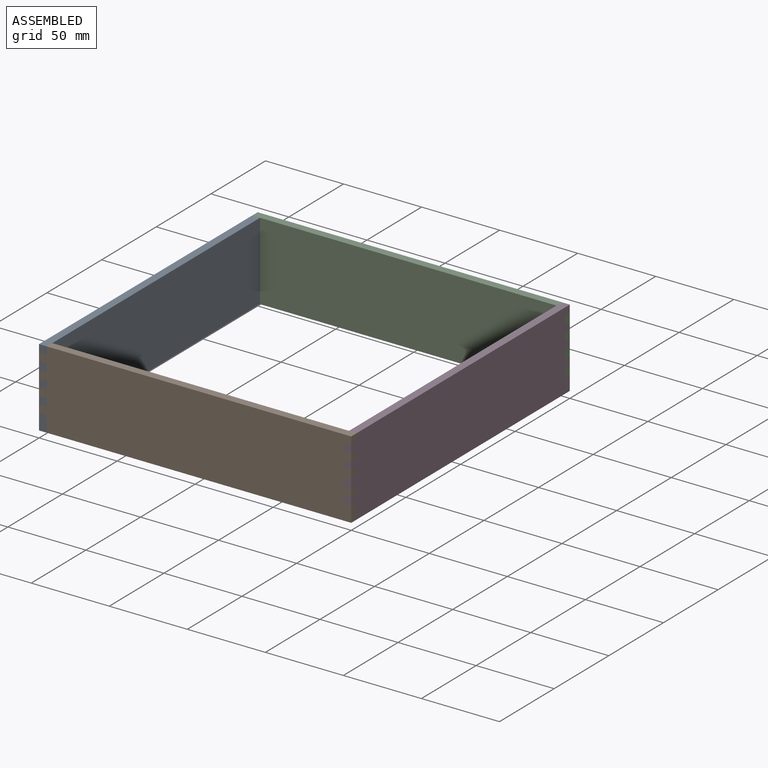
[diagram: assembled view]
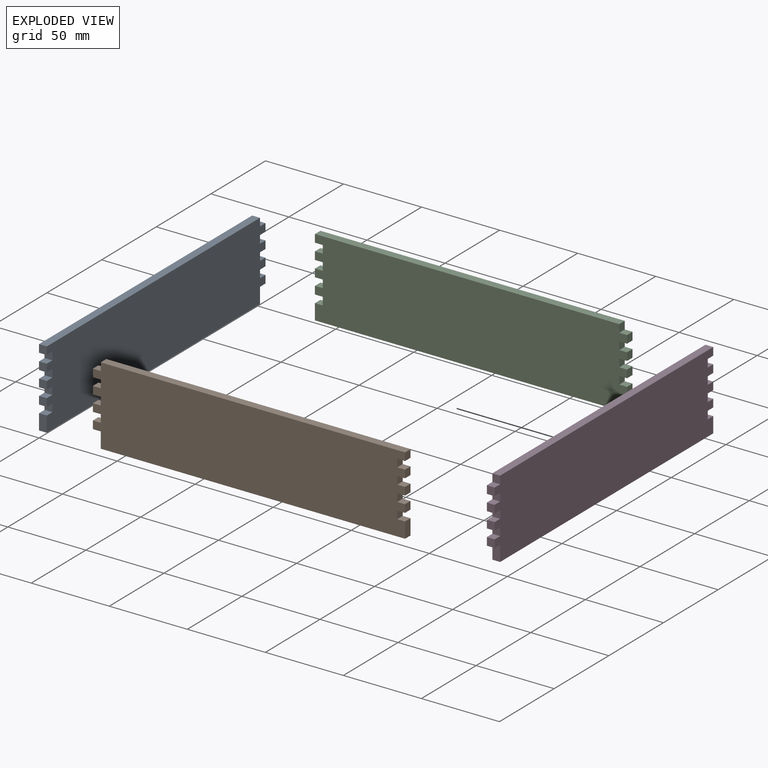
[diagram: exploded view]
GUIDED TOUR — MATED ASSEMBLY (Onshape document 14ee7dbbffca1f1e10165920, AutoMate assembly 14ee7dbbffca1f1e10165920_e3d922f79902fccb006b5758_66fbcc3a482cc04d142b8439_default)

This assembly has 4 components, labeled P0..P3 below (a component is one placed occurrence of a part; the same part can appear more than once), held together by 3 mates. A mate is a constraint between two components; its type names the relative motion it leaves free:
  FASTENED — locks the two components together rigidly (no relative motion).
Axis/direction vectors are unit vectors and 'through' points are millimeter coordinates, both in the assembly's world frame.

MATES
  1. FASTENED "Fastened 1": P0 <-> P1, direction (1.000, 0.000, 0.000) through (-95.00, 0.00, 20.02) mm
  2. FASTENED "Fastened 2": P2 <-> P0, direction (0.000, -1.000, 0.000) through (-100.00, 195.00, 25.02) mm
  3. FASTENED "Fastened 3": P3 <-> P1, direction (1.000, 0.000, 0.000) through (100.00, 5.00, 20.02) mm

ASSEMBLY ORDER
  1. P0 — the base component [order verified]
  2. P2 [order verified]
  3. P3 [order verified]
  4. P1 [order verified]
Order-tag legend:
  [order verified] — this step's position reverses a verified removal order: the component was checked to insert without passing through the ones already placed.

Of the 4 components, 4 carry the full construction recipe — the FeatureScript program that regenerates the part's solid from scratch; the rest are supplied as boundary geometry only.
Each toured component is shown spotlighted twice — in the assembled view, then in the exploded view, where a leader line traces a displaced component back to its assembled socket (saturated green if recipe-attached, orange if geometry-only; every other component desaturated gray) — followed by its recipe or geometry summary and the mates that hold it.
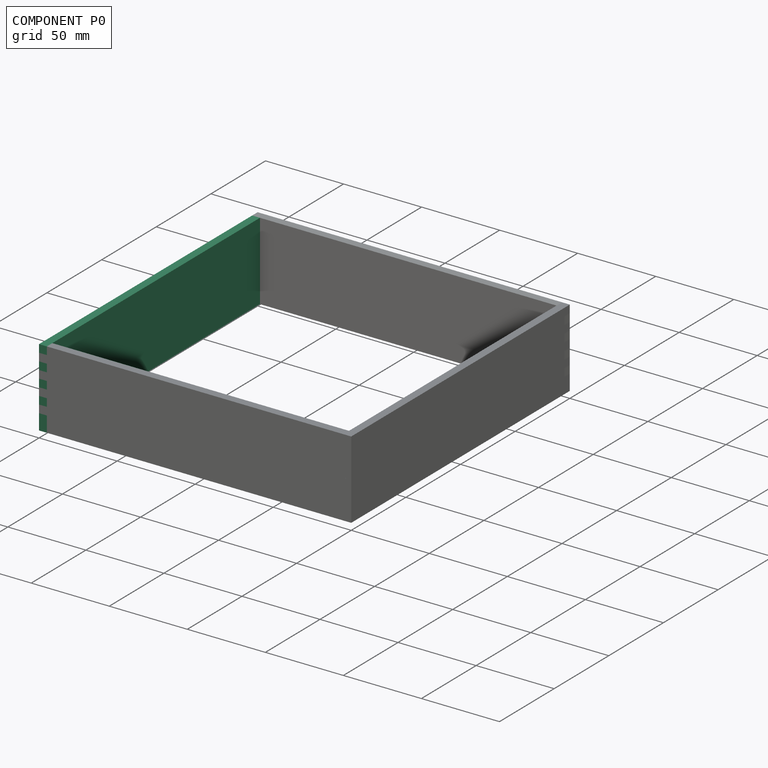
[diagram: component P0 — assembled]
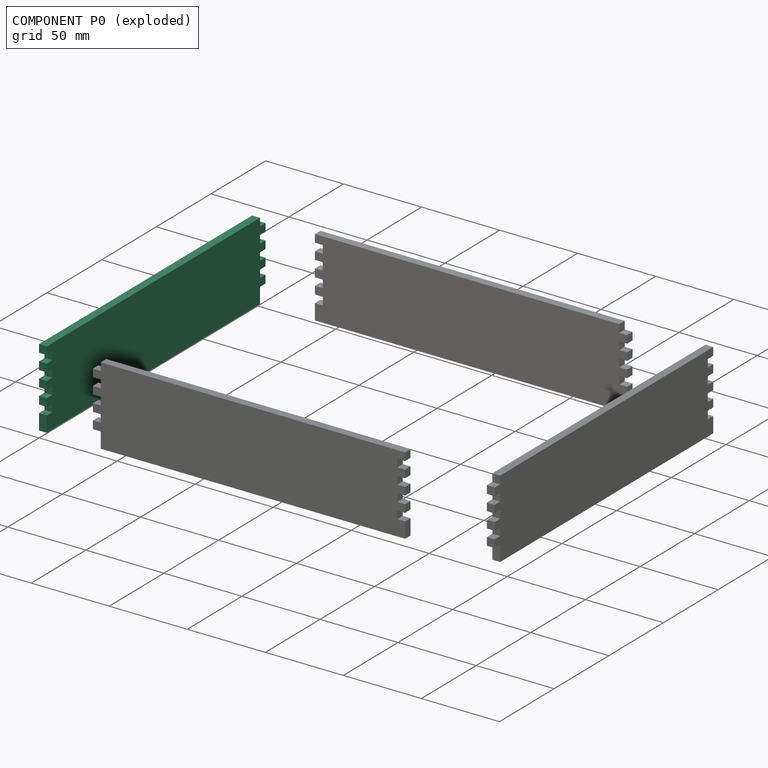
[diagram: component P0 — exploded]
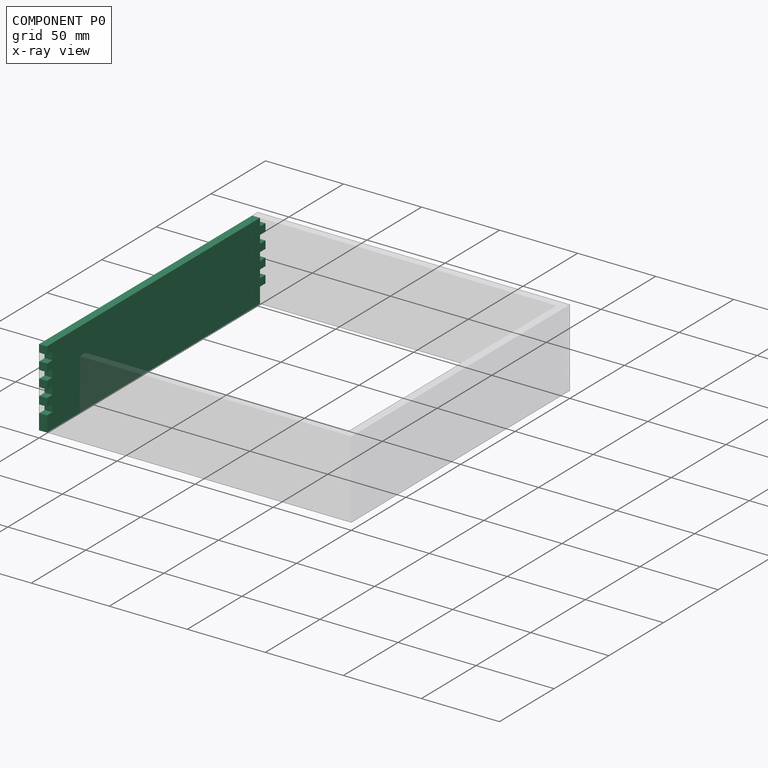
[diagram: component P0 — x-ray view]
COMPONENT P0 — recipe-attached (CADFS 00284914, mesh-verified: the recipe's output STEP matches this component's geometry to below the mesh-comparison resolution (tessellation chordal tolerance ~0.309 mm)).
Held by: FASTENED mate "Fastened 1" to P1; FASTENED mate "Fastened 2" to P2.
Construction recipe (FeatureScript — the CAD program that rebuilds this solid; sketch coordinates are in the units given by the * unit suffixes, e.g. mm):

FeatureScript 1511;
import(path : "onshape/std/geometry.fs", version : "1511.0");
import(path : "onshape/std/common.fs", version : "1511.0");
const mm = millimeter;
const VERTEX = EntityType.VERTEX;
const EDGE = EntityType.EDGE;
const FACE = EntityType.FACE;
const BODY = EntityType.BODY;
function v(x, y){return vector(x, y);}
function OD(order){return orderDisambiguation(order);}
function OSD(set){return originalSetDisambiguation(set);}
function TD(topology){return topologyDisambiguation(topology);}
function TDD(query){return trueDependencyDisambiguation(query);}
function sQuery(a, b, c) {return sketchEntityQuery(a, b, c);}

annotation { "Feature Type Name" : "Feature", "Feature Type Description" : "" }
export const myFeature = defineFeature(function(context is Context, id is Id, definition is map)
    precondition{}
    {
        {
            var Q0;
            Q0=qCreatedBy(makeId("Front.planeOp"),FACE);
            var sketch = newSketch(context, id + "F0", { "sketchPlane" : qUnion([Q0])});
            skLineSegment(sketch, "E0", {"start": v(0, 25.02) * mm, "end": v(100, 25.02) * mm});
            skLineSegment(sketch, "E1", {"start": v(100, 25.02) * mm, "end": v(100, 20.02) * mm});
            skLineSegment(sketch, "E2", {"start": v(100, -24.98) * mm, "end": v(0, -24.98) * mm});
            skLineSegment(sketch, "E3.0", {"start": v(95, 20.02) * mm, "end": v(100, 20.02) * mm});
            skLineSegment(sketch, "E4.0", {"start": v(95, 15.02) * mm, "end": v(100, 15.02) * mm});
            skLineSegment(sketch, "E5.0", {"start": v(95, 10.02) * mm, "end": v(100, 10.02) * mm});
            skLineSegment(sketch, "E6.0.1.0", {"start": v(95, 0.02) * mm, "end": v(100, 0.02) * mm});
            skLineSegment(sketch, "E6.0.2.0", {"start": v(95, -4.98) * mm, "end": v(100, -4.98) * mm});
            skLineSegment(sketch, "E6.0.3.0", {"start": v(95, -9.98) * mm, "end": v(100, -9.98) * mm});
            skLineSegment(sketch, "E6.0.4.0", {"start": v(95, -14.98) * mm, "end": v(100, -14.98) * mm});
            skLineSegment(sketch, "E6.direction2", {"start": v(0, 5.02) * mm, "end": v(0, 0.02) * mm, "construction": true});
            skLineSegment(sketch, "E7.0", {"start": v(95, 20.02) * mm, "end": v(95, 15.02) * mm});
            skLineSegment(sketch, "E8.trimOffspring", {"start": v(100, 15.02) * mm, "end": v(100, 10.02) * mm});
            skLineSegment(sketch, "E9.trimOffspring", {"start": v(100, 5.02) * mm, "end": v(100, 0.02) * mm});
            skLineSegment(sketch, "E10.trimOffspring", {"start": v(100, -4.98) * mm, "end": v(100, -9.98) * mm});
            skLineSegment(sketch, "E11.trimOffspring", {"start": v(100, -14.98) * mm, "end": v(100, -24.98) * mm});
            skLineSegment(sketch, "E12.trimOffspring", {"start": v(95, 10.02) * mm, "end": v(95, 5.02) * mm});
            skLineSegment(sketch, "E13.trimOffspring", {"start": v(95, 0.02) * mm, "end": v(95, -4.98) * mm});
            skLineSegment(sketch, "E14.trimOffspring", {"start": v(95, -9.98) * mm, "end": v(95, -14.98) * mm});
            skLineSegment(sketch, "E15.trimOffspring", {"start": v(95, 5.02) * mm, "end": v(100, 5.02) * mm});
            skPoint(sketch, "E16.orphan", {"position": v(0, -4.98) * mm});
            skPoint(sketch, "E17.orphan", {"position": v(0, -9.98) * mm});
            skPoint(sketch, "E18.orphan", {"position": v(0, -14.98) * mm});
            skLineSegment(sketch, "E19.MirrorCS", {"start": v(-95, -24.98) * mm, "end": v(0, -24.98) * mm});
            skLineSegment(sketch, "E20.MirrorCS", {"start": v(-95, -9.98) * mm, "end": v(-100, -9.98) * mm});
            skLineSegment(sketch, "E21.MirrorCS", {"start": v(-95, 0.02) * mm, "end": v(-100, 0.02) * mm});
            skLineSegment(sketch, "E22.MirrorCS", {"start": v(-95, 20.02) * mm, "end": v(-100, 20.02) * mm});
            skLineSegment(sketch, "E23.MirrorCS", {"start": v(-95, 5.02) * mm, "end": v(-100, 5.02) * mm});
            skLineSegment(sketch, "E24.MirrorCS", {"start": v(-95, -14.98) * mm, "end": v(-100, -14.98) * mm});
            skLineSegment(sketch, "E25.MirrorCS", {"start": v(0, 25.02) * mm, "end": v(-95, 25.02) * mm});
            skLineSegment(sketch, "E26.MirrorCS", {"start": v(-95, 15.02) * mm, "end": v(-100, 15.02) * mm});
            skLineSegment(sketch, "E27.MirrorCS", {"start": v(-95, 10.02) * mm, "end": v(-100, 10.02) * mm});
            skLineSegment(sketch, "E28.MirrorCS", {"start": v(-95, -4.98) * mm, "end": v(-100, -4.98) * mm});
            skLineSegment(sketch, "E29", {"start": v(-100, 20.02) * mm, "end": v(-100, 15.02) * mm});
            skLineSegment(sketch, "E30", {"start": v(-100, 10.02) * mm, "end": v(-100, 5.02) * mm});
            skLineSegment(sketch, "E31", {"start": v(-100, 0.02) * mm, "end": v(-100, -4.98) * mm});
            skLineSegment(sketch, "E32", {"start": v(-100, -9.98) * mm, "end": v(-100, -14.98) * mm});
            skLineSegment(sketch, "E33", {"start": v(-95, -14.98) * mm, "end": v(-95, -24.98) * mm});
            skPoint(sketch, "E33.endSnap0", {"position": v(-95, -12.48) * mm});
            skLineSegment(sketch, "E34", {"start": v(-95, -4.98) * mm, "end": v(-95, -9.98) * mm});
            skLineSegment(sketch, "E35", {"start": v(-95, 5.02) * mm, "end": v(-95, 0.02) * mm});
            skLineSegment(sketch, "E36", {"start": v(-95, 15.02) * mm, "end": v(-95, 10.02) * mm});
            skLineSegment(sketch, "E37", {"start": v(-95, 20.02) * mm, "end": v(-95, 25.02) * mm});
            skPoint(sketch, "E38.orphan", {"position": v(-100, 25.02) * mm});
            skPoint(sketch, "E39.orphan", {"position": v(-100, -24.98) * mm});
            skSolve(sketch);
        }
        {
            var Q0;
            Q0 = qSketchRegion(id + "F0", true);
            extrude(context, id + "F1", {"entities" : qUnion([Q0]), "oppositeDirection" : true, "depth" : 5 * mm});
        }
    });
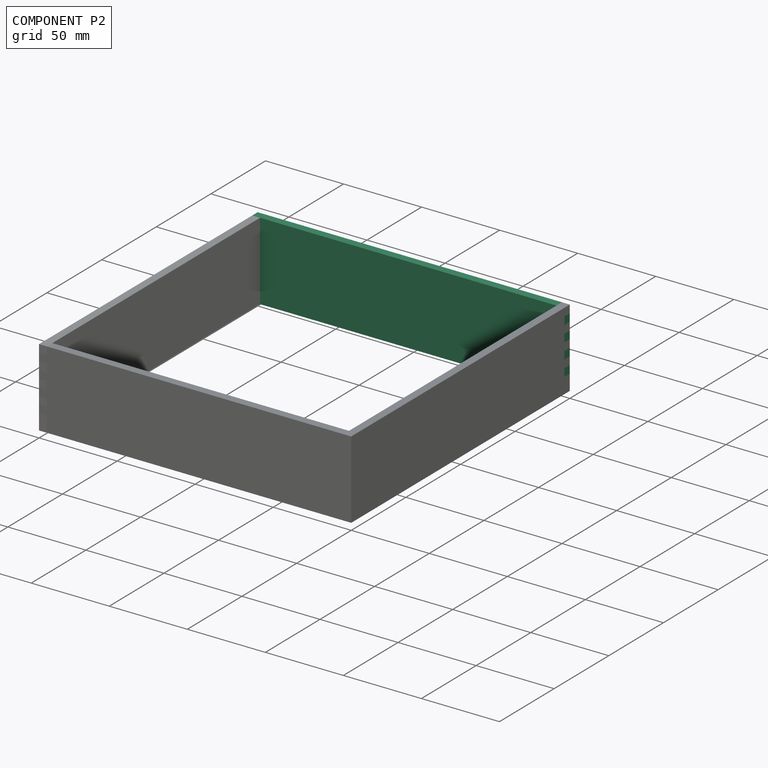
[diagram: component P2 — assembled]
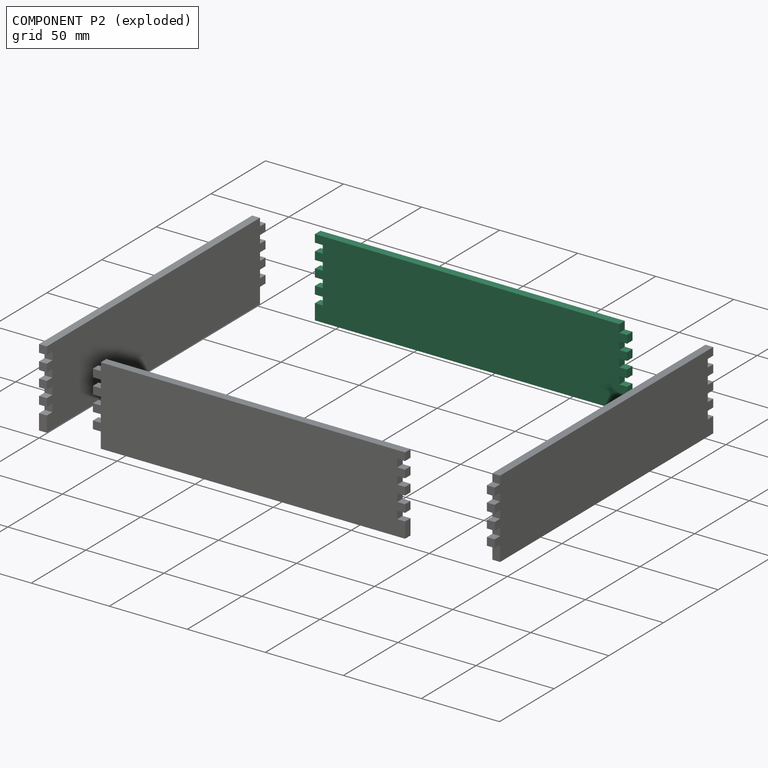
[diagram: component P2 — exploded]
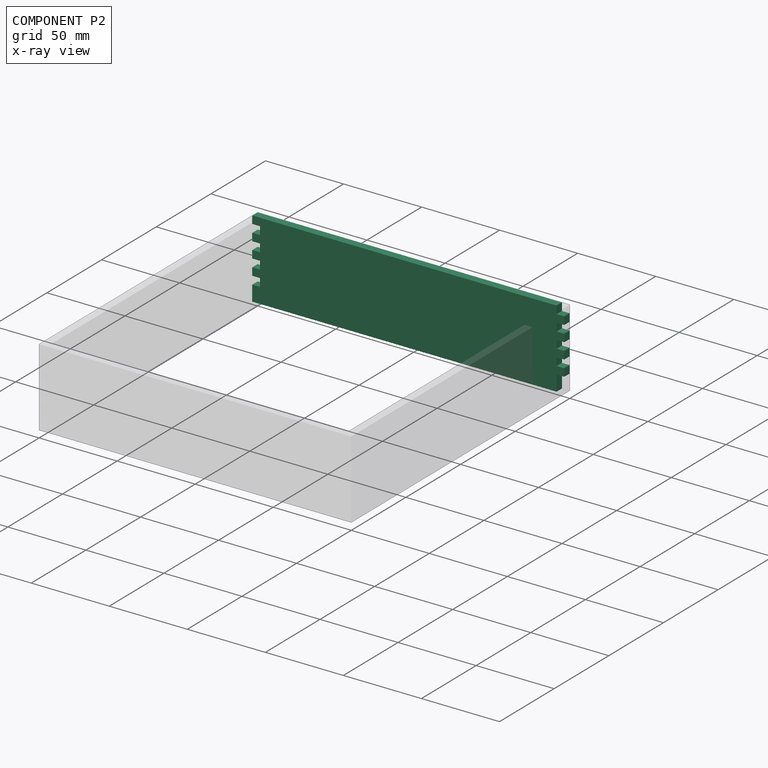
[diagram: component P2 — x-ray view]
COMPONENT P2 — same part as P0 (CADFS 00284914); its construction recipe is shown at P0.
Held by: FASTENED mate "Fastened 2" to P0.
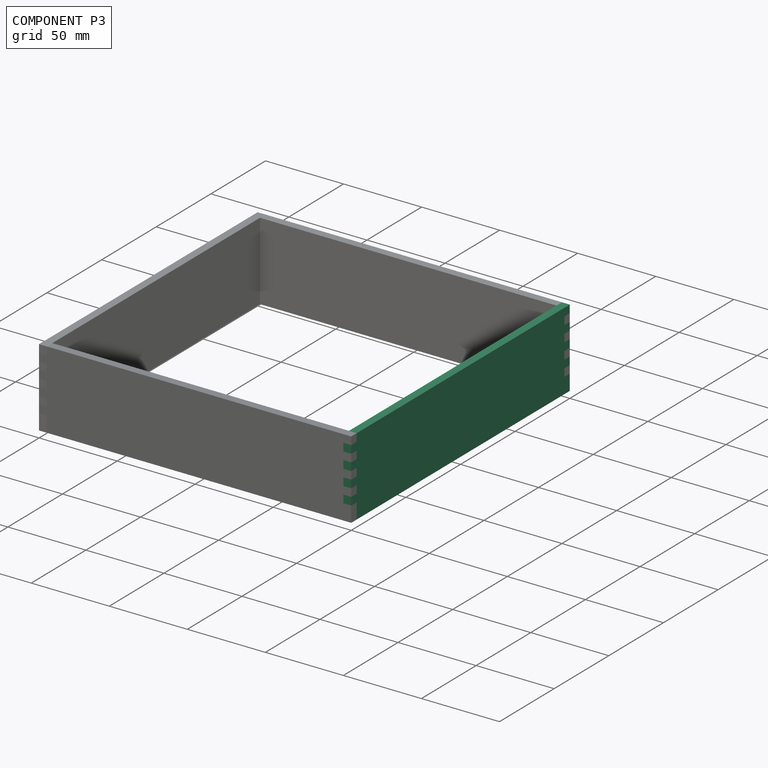
[diagram: component P3 — assembled]
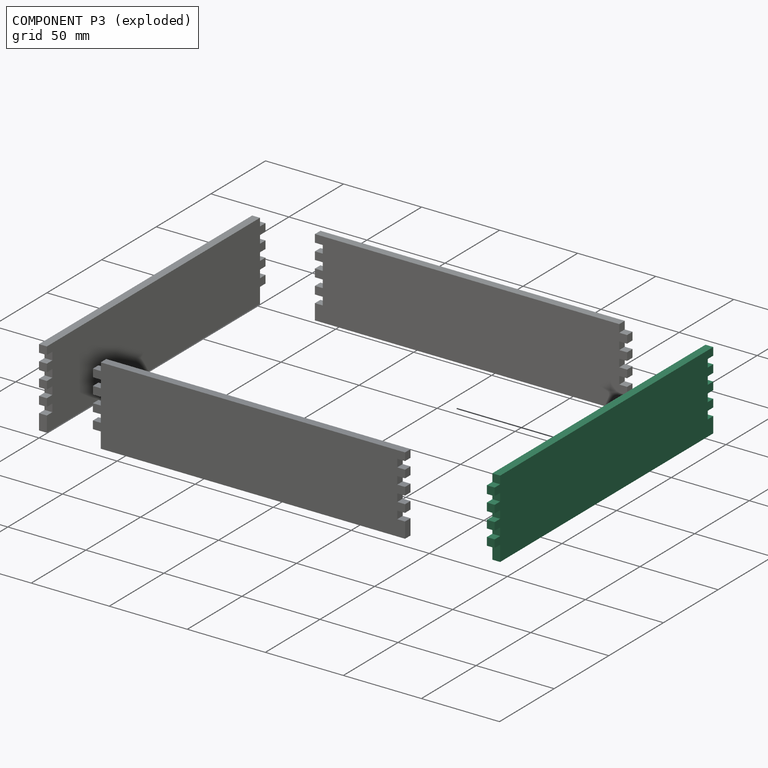
[diagram: component P3 — exploded]
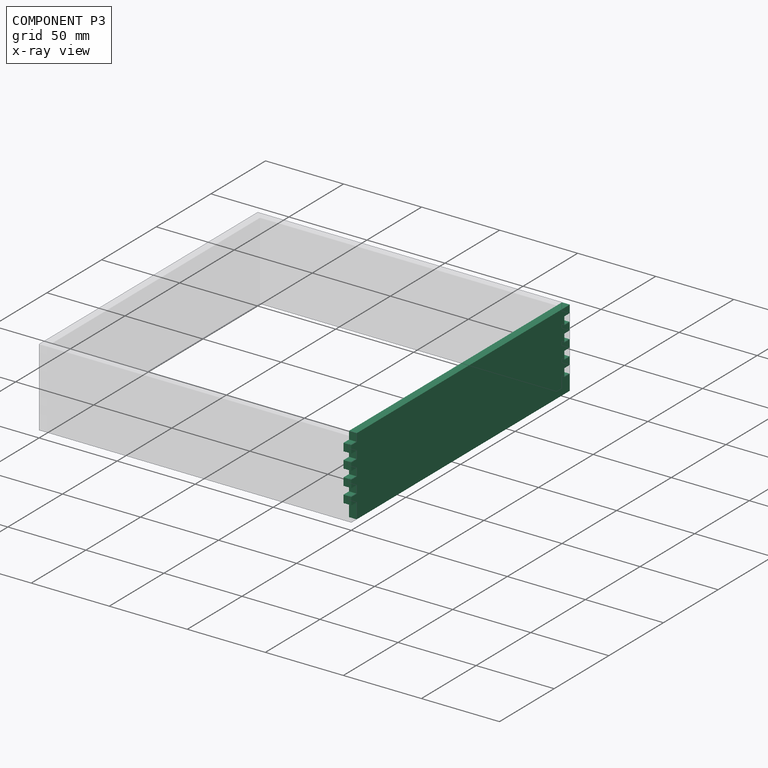
[diagram: component P3 — x-ray view]
COMPONENT P3 — same part as P0 (CADFS 00284914); its construction recipe is shown at P0.
Held by: FASTENED mate "Fastened 3" to P1.
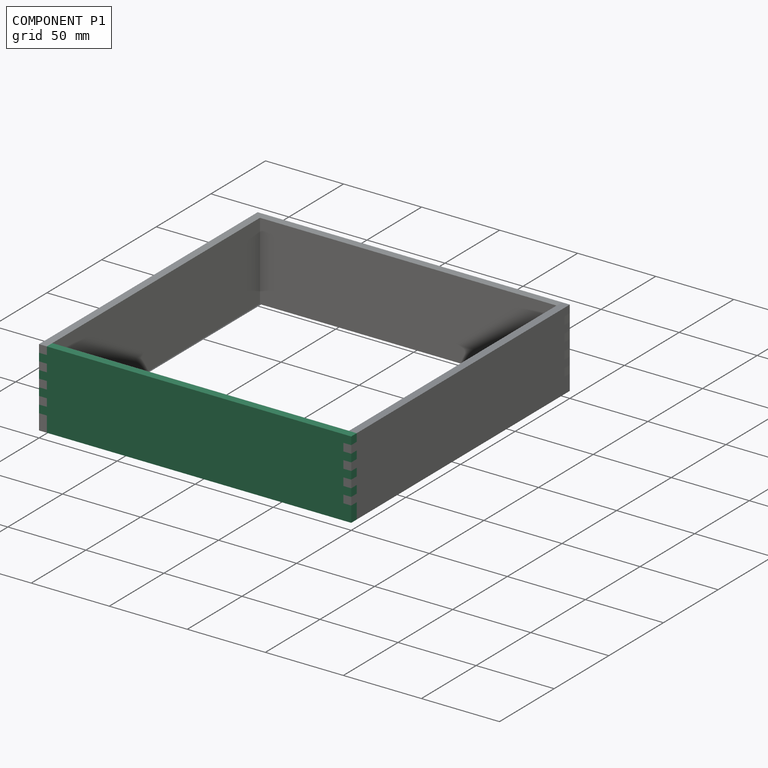
[diagram: component P1 — assembled]
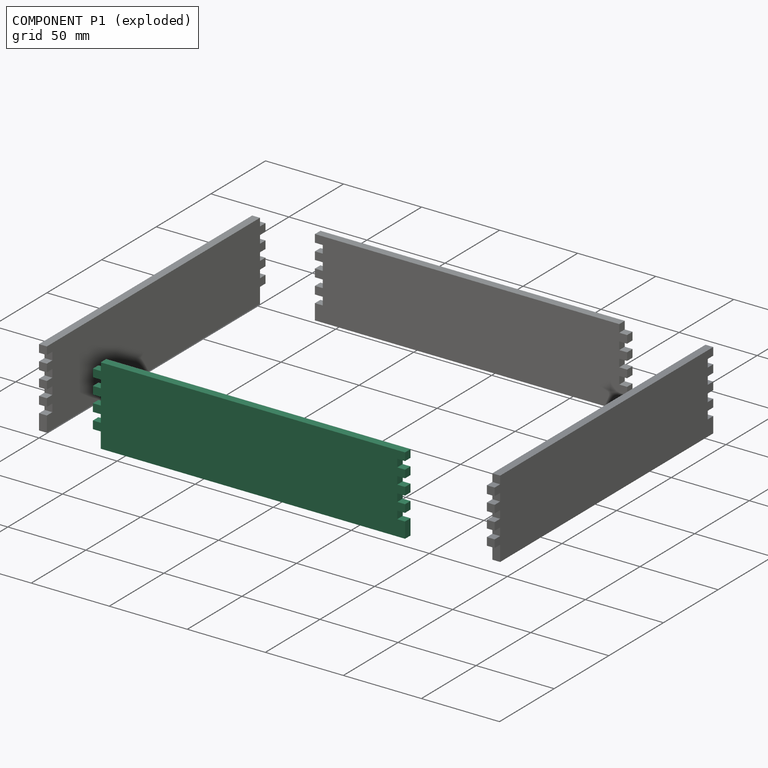
[diagram: component P1 — exploded]
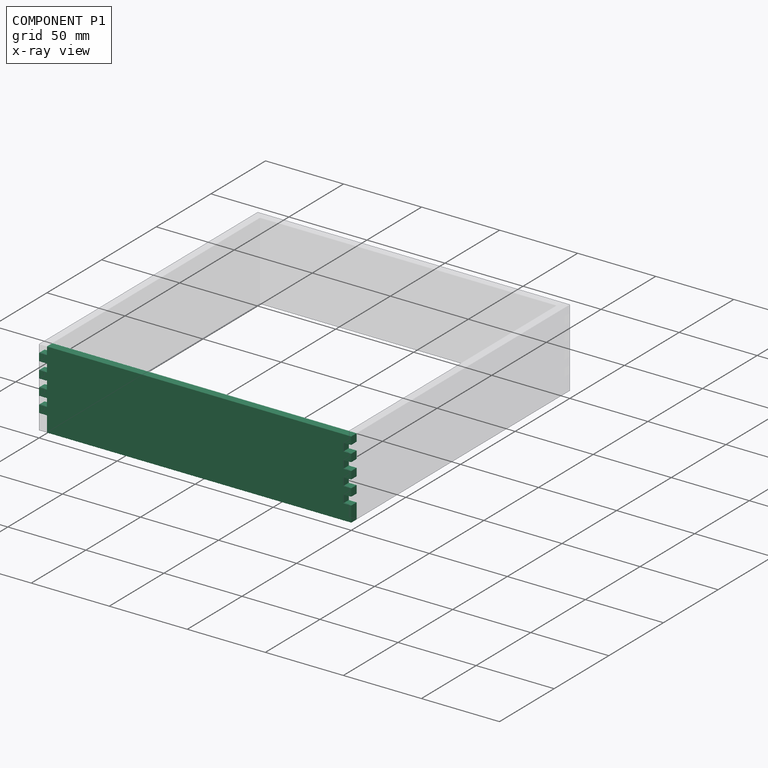
[diagram: component P1 — x-ray view]
COMPONENT P1 — same part as P0 (CADFS 00284914); its construction recipe is shown at P0.
Held by: FASTENED mate "Fastened 1" to P0; FASTENED mate "Fastened 3" to P3.
PROVENANCE & LICENSES
Assembly (occurrences, transforms, mates, per-part STEP geometry): AutoMate dataset, Zenodo record 7776208, CC0.
Construction recipes: CADFS (HuggingFace VladPyatov/CADFS, CC-BY-4.0, layered over the ABC dataset), FeatureScript reconstruction programs keyed by ABC model id.
Join: ABC meta listings map ABC model id -> Onshape documentId; within a shared document, parts are matched by geometric signature (bounding-box dims + volume at 0.1% relative tolerance, exact B-rep face/solid counts).
Verification: 4 of this assembly's 4 components carry a recipe attachment, and every attachment is mesh-verified: the CADFS STEP and the AutoMate member STEP were compared as meshes in their shared local frame (symmetric sampled-point-to-mesh distance); worst across the 4 attachments: below the mesh-comparison resolution (tessellation chordal tolerance ~0.309 mm) on a 206 mm part.
Renders: orthographic iso camera (az 35 / el 25); the floor grid conveys scale (grid pitch printed in each image; no ruler). In the exploded view each component is displaced by its stored offset vector: the offsets alone carry the explosion direction (mate normal/axis signs are not orientation cues and do not encode it), and separation distances are assigned per mate-chain, not proportionally to assembly-order depth.
